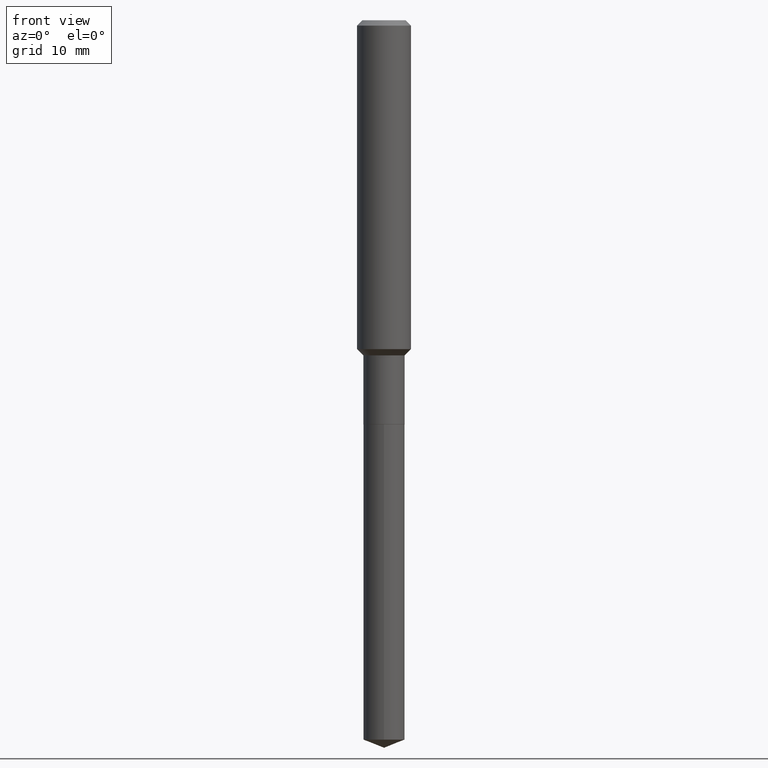
[diagram: clean part render]
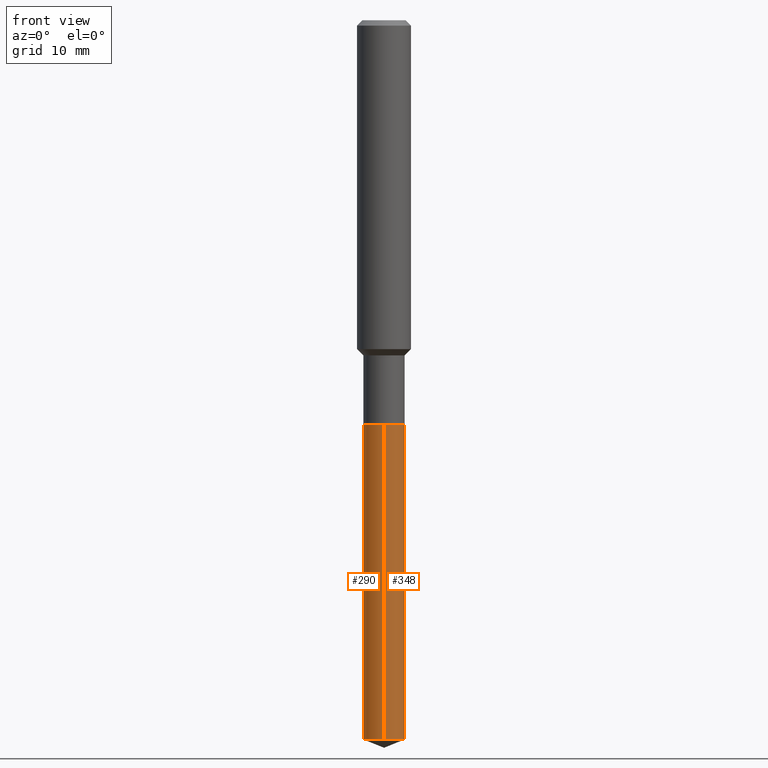
[diagram: same view with one multi-face feature highlighted, each face labeled with its STEP entity id]
A machine part, front view. The highlighted faces form ONE feature: a constant-radius fillet chain: 2 tangent blend faces with common blend radius 2.3 mm. The faces share edges in the B-rep.
Their STEP definitions:
[1] entity #348 (Cylinder):
#2 = LINE ( 'NONE', #375, #126 ) ;
#6 = DIRECTION ( 'NONE',  ( -2.445498752953222356E-29, 3.491438453366782686E-15, 1.000000000000000000 ) ) ;
#26 = EDGE_CURVE ( 'NONE', #112, #98, #305, .T. ) ;
#58 = CARTESIAN_POINT ( 'NONE',  ( 6.433964472308481643E-16, 0.09054999999999382987, -1.771700000000000719 ) ) ;
#59 = VERTEX_POINT ( 'NONE', #472 ) ;
#97 = DIRECTION ( 'NONE',  ( -2.445498752953222356E-29, 3.491438453366782686E-15, 1.000000000000000000 ) ) ;
#98 = VERTEX_POINT ( 'NONE', #333 ) ;
#111 = CARTESIAN_POINT ( 'NONE',  ( -6.323072704644144570E-16, -0.09055000000001103833, -3.153331406433067752 ) ) ;
#112 = VERTEX_POINT ( 'NONE', #111 ) ;
#118 = DIRECTION ( 'NONE',  ( -6.982962677686266711E-15, -1.000000000000000000, 3.016949744521549444E-15 ) ) ;
#126 = VECTOR ( 'NONE', #158, 39.37007874015748143 ) ;
#127 = CARTESIAN_POINT ( 'NONE',  ( 4.332637083918206987E-29, -6.185857488028401870E-15, -1.771700000000000497 ) ) ;
#150 = DIRECTION ( 'NONE',  ( -6.982962677686266711E-15, -1.000000000000000000, 6.033899489043098888E-15 ) ) ;
#151 = EDGE_CURVE ( 'NONE', #59, #347, #299, .T. ) ;
#158 = DIRECTION ( 'NONE',  ( -2.445498752953222356E-29, 3.491438453366782686E-15, 1.000000000000000000 ) ) ;
#163 = AXIS2_PLACEMENT_3D ( 'NONE', #267, #6, #118 ) ;
#173 = EDGE_LOOP ( 'NONE', ( #445, #427, #442, #397 ) ) ;
#217 = DIRECTION ( 'NONE',  ( -2.445498752953222356E-29, 3.491438453366782686E-15, 1.000000000000000000 ) ) ;
#231 = EDGE_CURVE ( 'NONE', #98, #347, #2, .T. ) ;
#252 = AXIS2_PLACEMENT_3D ( 'NONE', #127, #97, #324 ) ;
#267 = CARTESIAN_POINT ( 'NONE',  ( 4.332637083918206987E-29, -6.185857488028401870E-15, -1.771700000000000497 ) ) ;
#280 = DIRECTION ( 'NONE',  ( -2.445498752953222356E-29, 3.491438453366782686E-15, 1.000000000000000000 ) ) ;
#299 = CIRCLE ( 'NONE', #163, 0.09055000000000000548 ) ;
#301 = EDGE_CURVE ( 'NONE', #112, #59, #321, .T. ) ;
#305 = CIRCLE ( 'NONE', #367, 0.09055000000000000548 ) ;
#321 = LINE ( 'NONE', #435, #398 ) ;
#324 = DIRECTION ( 'NONE',  ( -6.982962677686266711E-15, -1.000000000000000000, 3.016949744521549444E-15 ) ) ;
#333 = CARTESIAN_POINT ( 'NONE',  ( 6.433964472308480656E-16, 0.09054999999998902815, -3.153331406433068640 ) ) ;
#347 = VERTEX_POINT ( 'NONE', #58 ) ;
#348 = ADVANCED_FACE ( 'NONE', ( #467 ), #350, .T. ) ;
#350 = CYLINDRICAL_SURFACE ( 'NONE', #252, 0.09055000000000000548 ) ;
#367 = AXIS2_PLACEMENT_3D ( 'NONE', #444, #217, #150 ) ;
#375 = CARTESIAN_POINT ( 'NONE',  ( 6.433964472308139474E-16, 0.09054999999999382987, -1.771700000000000719 ) ) ;
#397 = ORIENTED_EDGE ( 'NONE', *, *, #301, .F. ) ;
#398 = VECTOR ( 'NONE', #280, 39.37007874015748143 ) ;
#427 = ORIENTED_EDGE ( 'NONE', *, *, #231, .T. ) ;
#435 = CARTESIAN_POINT ( 'NONE',  ( -6.323072704644481808E-16, -0.09055000000000619498, -1.771700000000000053 ) ) ;
#442 = ORIENTED_EDGE ( 'NONE', *, *, #151, .F. ) ;
#444 = CARTESIAN_POINT ( 'NONE',  ( 7.711414965391280947E-29, -1.100973850882804455E-14, -3.153331406433068196 ) ) ;
#445 = ORIENTED_EDGE ( 'NONE', *, *, #26, .T. ) ;
#467 = FACE_OUTER_BOUND ( 'NONE', #173, .T. ) ;
#472 = CARTESIAN_POINT ( 'NONE',  ( -6.323072704644481808E-16, -0.09055000000000619498, -1.771700000000000053 ) ) ;
[2] entity #290 (Cylinder):
#2 = LINE ( 'NONE', #375, #126 ) ;
#9 = EDGE_LOOP ( 'NONE', ( #162, #425, #11, #14 ) ) ;
#11 = ORIENTED_EDGE ( 'NONE', *, *, #301, .T. ) ;
#14 = ORIENTED_EDGE ( 'NONE', *, *, #382, .F. ) ;
#54 = DIRECTION ( 'NONE',  ( -2.445498752953222356E-29, 3.491438453366782686E-15, 1.000000000000000000 ) ) ;
#56 = CYLINDRICAL_SURFACE ( 'NONE', #416, 0.09055000000000000548 ) ;
#58 = CARTESIAN_POINT ( 'NONE',  ( 6.433964472308481643E-16, 0.09054999999999382987, -1.771700000000000719 ) ) ;
#59 = VERTEX_POINT ( 'NONE', #472 ) ;
#85 = EDGE_CURVE ( 'NONE', #98, #112, #133, .T. ) ;
#98 = VERTEX_POINT ( 'NONE', #333 ) ;
#111 = CARTESIAN_POINT ( 'NONE',  ( -6.323072704644144570E-16, -0.09055000000001103833, -3.153331406433067752 ) ) ;
#112 = VERTEX_POINT ( 'NONE', #111 ) ;
#115 = CARTESIAN_POINT ( 'NONE',  ( 7.711414965391280947E-29, -1.100973850882804455E-14, -3.153331406433068196 ) ) ;
#126 = VECTOR ( 'NONE', #158, 39.37007874015748143 ) ;
#133 = CIRCLE ( 'NONE', #406, 0.09055000000000000548 ) ;
#158 = DIRECTION ( 'NONE',  ( -2.445498752953222356E-29, 3.491438453366782686E-15, 1.000000000000000000 ) ) ;
#162 = ORIENTED_EDGE ( 'NONE', *, *, #231, .F. ) ;
#169 = FACE_OUTER_BOUND ( 'NONE', #9, .T. ) ;
#172 = DIRECTION ( 'NONE',  ( -2.445498752953222356E-29, 3.491438453366782686E-15, 1.000000000000000000 ) ) ;
#176 = DIRECTION ( 'NONE',  ( -6.982962677686266711E-15, -1.000000000000000000, 6.033899489043098888E-15 ) ) ;
#206 = DIRECTION ( 'NONE',  ( -6.982962677686266711E-15, -1.000000000000000000, 3.016949744521549444E-15 ) ) ;
#231 = EDGE_CURVE ( 'NONE', #98, #347, #2, .T. ) ;
#278 = CARTESIAN_POINT ( 'NONE',  ( 4.332637083918206987E-29, -6.185857488028401870E-15, -1.771700000000000497 ) ) ;
#280 = DIRECTION ( 'NONE',  ( -2.445498752953222356E-29, 3.491438453366782686E-15, 1.000000000000000000 ) ) ;
#286 = CARTESIAN_POINT ( 'NONE',  ( 4.332637083918206987E-29, -6.185857488028401870E-15, -1.771700000000000497 ) ) ;
#290 = ADVANCED_FACE ( 'NONE', ( #169 ), #56, .T. ) ;
#301 = EDGE_CURVE ( 'NONE', #112, #59, #321, .T. ) ;
#321 = LINE ( 'NONE', #435, #398 ) ;
#329 = DIRECTION ( 'NONE',  ( -2.445498752953222356E-29, 3.491438453366782686E-15, 1.000000000000000000 ) ) ;
#333 = CARTESIAN_POINT ( 'NONE',  ( 6.433964472308480656E-16, 0.09054999999998902815, -3.153331406433068640 ) ) ;
#347 = VERTEX_POINT ( 'NONE', #58 ) ;
#375 = CARTESIAN_POINT ( 'NONE',  ( 6.433964472308139474E-16, 0.09054999999999382987, -1.771700000000000719 ) ) ;
#377 = CIRCLE ( 'NONE', #440, 0.09055000000000000548 ) ;
#382 = EDGE_CURVE ( 'NONE', #347, #59, #377, .T. ) ;
#398 = VECTOR ( 'NONE', #280, 39.37007874015748143 ) ;
#406 = AXIS2_PLACEMENT_3D ( 'NONE', #115, #329, #176 ) ;
#416 = AXIS2_PLACEMENT_3D ( 'NONE', #286, #54, #206 ) ;
#425 = ORIENTED_EDGE ( 'NONE', *, *, #85, .T. ) ;
#426 = DIRECTION ( 'NONE',  ( -6.982962677686266711E-15, -1.000000000000000000, 3.016949744521549444E-15 ) ) ;
#435 = CARTESIAN_POINT ( 'NONE',  ( -6.323072704644481808E-16, -0.09055000000000619498, -1.771700000000000053 ) ) ;
#440 = AXIS2_PLACEMENT_3D ( 'NONE', #278, #172, #426 ) ;
#472 = CARTESIAN_POINT ( 'NONE',  ( -6.323072704644481808E-16, -0.09055000000000619498, -1.771700000000000053 ) ) ;